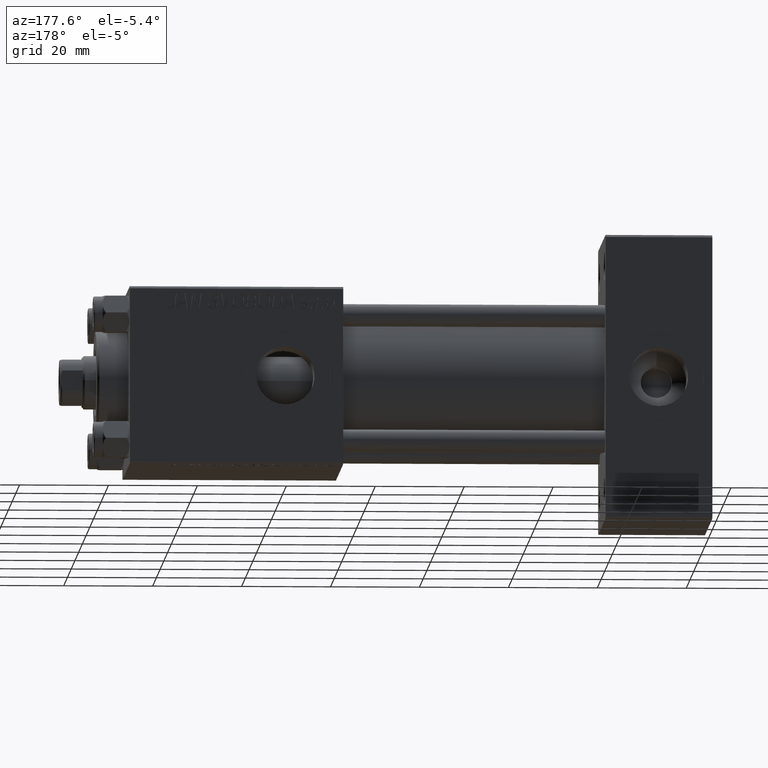
[diagram: clean part render]
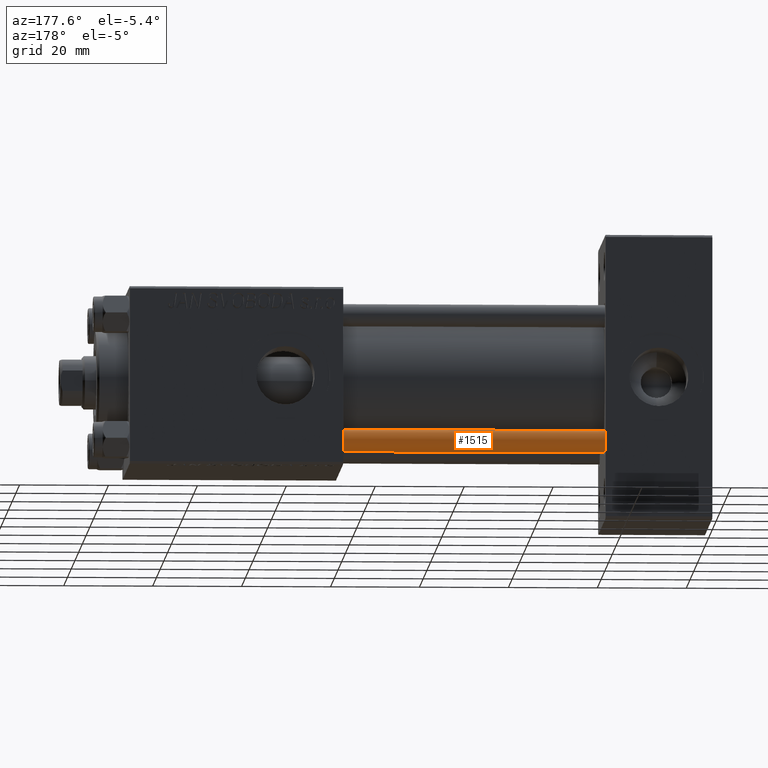
[diagram: same view with one face highlighted and labeled with its STEP entity id]
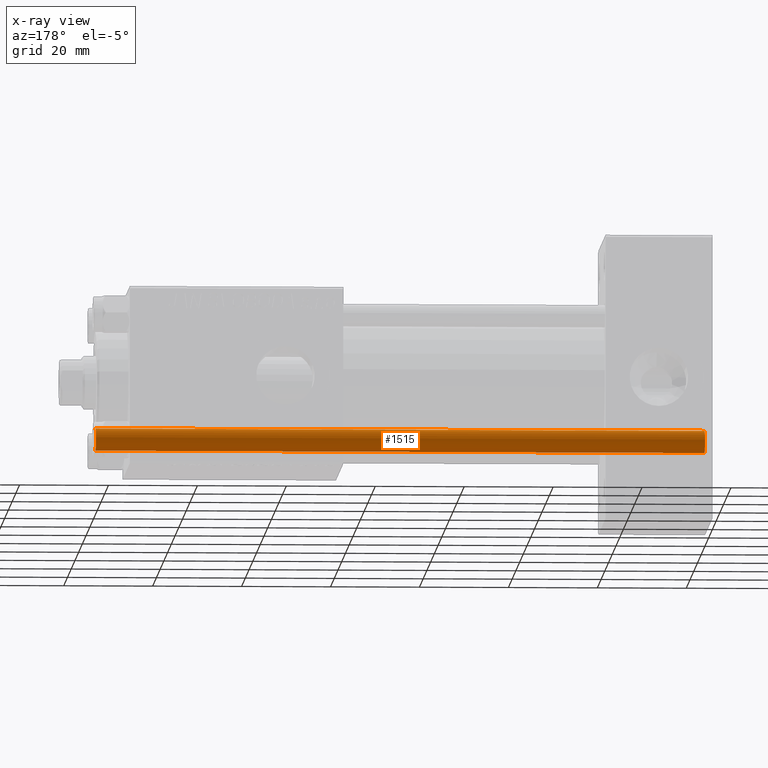
[diagram: x-ray of the same camera — body ghosted, the highlighted face saturated]
A machine part, auxiliary view. The second image highlights one B-rep face of the part: STEP entity #1515.
The next image is the same camera in x-ray: the body ghosted, the highlighted face saturated — about 0% of this face is hidden behind the body in this view.
In plain terms, the highlighted cylindrical surface (edge-blend (fillet) strip) has radius 2.5 mm, axis along (-1, 0, 0).
Its self-contained STEP definition (entity closure, byte-faithful):
#316 = EDGE_CURVE ( 'NONE', #49013, #44133, #8507, .T. ) ;
#1515 = ADVANCED_FACE ( 'NONE', ( #3241 ), #22663, .T. ) ;
#2414 = DIRECTION ( 'NONE',  ( 0.000000000000000000, 0.000000000000000000, -1.000000000000000000 ) ) ;
#3241 = FACE_OUTER_BOUND ( 'NONE', #3399, .T. ) ;
#3399 = EDGE_LOOP ( 'NONE', ( #45019, #27275, #15262, #33640 ) ) ;
#5934 = EDGE_CURVE ( 'NONE', #7472, #49013, #29853, .T. ) ;
#5949 = DIRECTION ( 'NONE',  ( 1.000000000000000000, 0.000000000000000000, 0.000000000000000000 ) ) ;
#7260 = DIRECTION ( 'NONE',  ( -1.000000000000000000, 0.000000000000000000, 0.000000000000000000 ) ) ;
#7472 = VERTEX_POINT ( 'NONE', #27005 ) ;
#8507 = LINE ( 'NONE', #23412, #33686 ) ;
#15098 = CARTESIAN_POINT ( 'NONE',  ( 0.000000000000000000, 0.000000000000000000, 138.0000000000000000 ) ) ;
#15125 = DIRECTION ( 'NONE',  ( -0.000000000000000000, -0.000000000000000000, 1.000000000000000000 ) ) ;
#15262 = ORIENTED_EDGE ( 'NONE', *, *, #316, .T. ) ;
#16021 = CARTESIAN_POINT ( 'NONE',  ( 2.500000000000000000, 3.061616997868383141E-16, 138.0000000000000000 ) ) ;
#18335 = AXIS2_PLACEMENT_3D ( 'NONE', #49709, #15125, #45926 ) ;
#22663 = CYLINDRICAL_SURFACE ( 'NONE', #23995, 2.500000000000000000 ) ;
#22681 = VECTOR ( 'NONE', #43281, 1000.000000000000000 ) ;
#23412 = CARTESIAN_POINT ( 'NONE',  ( -2.500000000000000000, 0.000000000000000000, 138.0000000000000000 ) ) ;
#23995 = AXIS2_PLACEMENT_3D ( 'NONE', #15098, #41618, #7260 ) ;
#26309 = CARTESIAN_POINT ( 'NONE',  ( -2.500000000000000000, 0.000000000000000000, 0.5000000000000004441 ) ) ;
#27005 = CARTESIAN_POINT ( 'NONE',  ( 2.500000000000000000, 3.061616997868383141E-16, 137.4999999999999716 ) ) ;
#27275 = ORIENTED_EDGE ( 'NONE', *, *, #5934, .T. ) ;
#28137 = LINE ( 'NONE', #16021, #22681 ) ;
#29050 = AXIS2_PLACEMENT_3D ( 'NONE', #43579, #2414, #5949 ) ;
#29853 = CIRCLE ( 'NONE', #29050, 2.500000000000000000 ) ;
#29909 = EDGE_CURVE ( 'NONE', #44133, #42199, #44925, .T. ) ;
#30476 = CARTESIAN_POINT ( 'NONE',  ( 2.500000000000000000, 3.061616997868383141E-16, 0.5000000000000004441 ) ) ;
#30771 = DIRECTION ( 'NONE',  ( -0.000000000000000000, -0.000000000000000000, -1.000000000000000000 ) ) ;
#33640 = ORIENTED_EDGE ( 'NONE', *, *, #29909, .T. ) ;
#33686 = VECTOR ( 'NONE', #30771, 1000.000000000000000 ) ;
#40831 = EDGE_CURVE ( 'NONE', #7472, #42199, #28137, .T. ) ;
#41618 = DIRECTION ( 'NONE',  ( -0.000000000000000000, -0.000000000000000000, -1.000000000000000000 ) ) ;
#42199 = VERTEX_POINT ( 'NONE', #30476 ) ;
#43281 = DIRECTION ( 'NONE',  ( -0.000000000000000000, -0.000000000000000000, -1.000000000000000000 ) ) ;
#43579 = CARTESIAN_POINT ( 'NONE',  ( 0.000000000000000000, 0.000000000000000000, 137.4999999999999716 ) ) ;
#44133 = VERTEX_POINT ( 'NONE', #26309 ) ;
#44925 = CIRCLE ( 'NONE', #18335, 2.500000000000000000 ) ;
#45019 = ORIENTED_EDGE ( 'NONE', *, *, #40831, .F. ) ;
#45926 = DIRECTION ( 'NONE',  ( 1.000000000000000000, 0.000000000000000000, 0.000000000000000000 ) ) ;
#49013 = VERTEX_POINT ( 'NONE', #49421 ) ;
#49421 = CARTESIAN_POINT ( 'NONE',  ( -2.500000000000000000, 0.000000000000000000, 137.4999999999999716 ) ) ;
#49709 = CARTESIAN_POINT ( 'NONE',  ( 0.000000000000000000, 0.000000000000000000, 0.5000000000000004441 ) ) ;